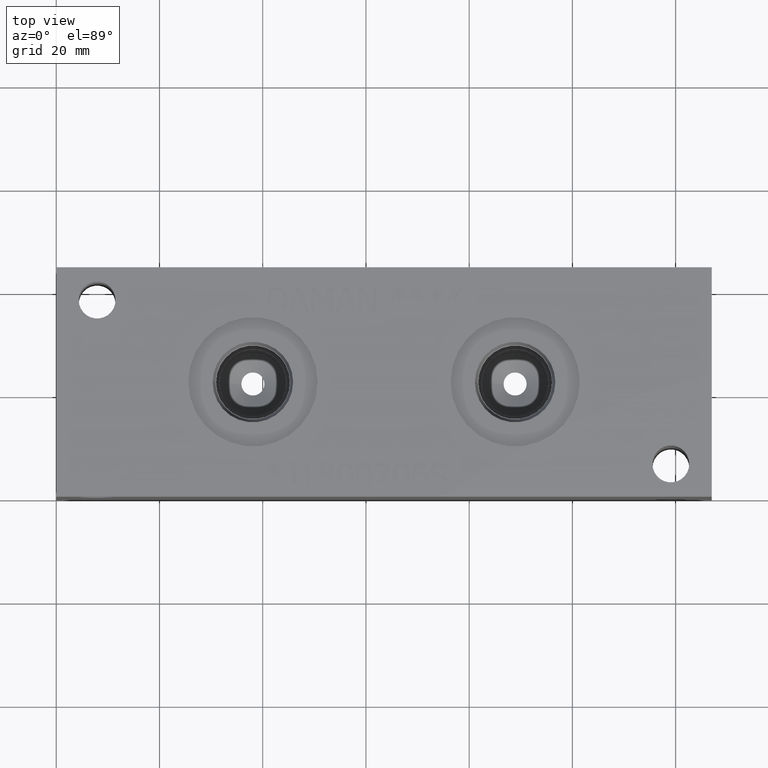
[diagram: clean part render]
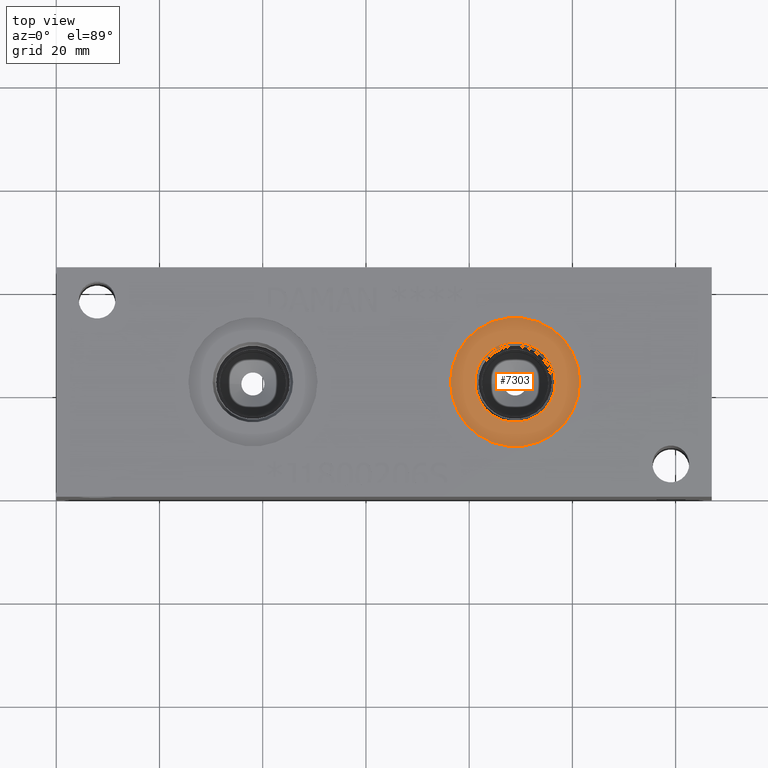
[diagram: same view with one face highlighted and labeled with its STEP entity id]
A machine part, top view. The second image highlights one B-rep face of the part: STEP entity #7303.
In plain terms, the highlighted planar face has unit normal (0, 0, -1).
Its self-contained STEP definition (entity closure, byte-faithful):
#123=CIRCLE('',#7632,12.5095);
#124=CIRCLE('',#7633,12.5095);
#125=CIRCLE('',#7635,7.79780000000001);
#126=CIRCLE('',#7636,7.79780000000001);
#193=FACE_BOUND('',#1304,.T.);
#893=FACE_OUTER_BOUND('',#1303,.T.);
#1303=EDGE_LOOP('',(#6283,#6284));
#1304=EDGE_LOOP('',(#6285,#6286));
#3352=VERTEX_POINT('',#12523);
#3353=VERTEX_POINT('',#12525);
#3354=VERTEX_POINT('',#12529);
#3355=VERTEX_POINT('',#12530);
#4339=EDGE_CURVE('',#3352,#3353,#123,.T.);
#4340=EDGE_CURVE('',#3353,#3352,#124,.T.);
#4341=EDGE_CURVE('',#3354,#3355,#125,.T.);
#4342=EDGE_CURVE('',#3355,#3354,#126,.T.);
#6283=ORIENTED_EDGE('',*,*,#4340,.F.);
#6284=ORIENTED_EDGE('',*,*,#4339,.F.);
#6285=ORIENTED_EDGE('',*,*,#4341,.T.);
#6286=ORIENTED_EDGE('',*,*,#4342,.T.);
#6643=PLANE('',#7634);
#7303=ADVANCED_FACE('',(#893,#193),#6643,.F.);
#7632=AXIS2_PLACEMENT_3D('',#12526,#8935,#8936);
#7633=AXIS2_PLACEMENT_3D('',#12527,#8937,#8938);
#7634=AXIS2_PLACEMENT_3D('',#12528,#8939,#8940);
#7635=AXIS2_PLACEMENT_3D('',#12531,#8941,#8942);
#7636=AXIS2_PLACEMENT_3D('',#12532,#8943,#8944);
#8935=DIRECTION('center_axis',(0.,0.,-1.));
#8936=DIRECTION('ref_axis',(1.,0.,0.));
#8937=DIRECTION('center_axis',(0.,0.,-1.));
#8938=DIRECTION('ref_axis',(1.,0.,0.));
#8939=DIRECTION('center_axis',(0.,0.,-1.));
#8940=DIRECTION('ref_axis',(-1.,0.,0.));
#8941=DIRECTION('center_axis',(0.,0.,-1.));
#8942=DIRECTION('ref_axis',(1.,0.,0.));
#8943=DIRECTION('center_axis',(0.,0.,-1.));
#8944=DIRECTION('ref_axis',(1.,0.,0.));
#12523=CARTESIAN_POINT('',(76.3905,22.225,43.6626));
#12525=CARTESIAN_POINT('',(101.4095,22.225,43.6626));
#12526=CARTESIAN_POINT('Origin',(88.9,22.225,43.6626));
#12527=CARTESIAN_POINT('Origin',(88.9,22.225,43.6626));
#12528=CARTESIAN_POINT('Origin',(96.6978,22.225,43.6626));
#12529=CARTESIAN_POINT('',(96.6978,22.225,43.6626));
#12530=CARTESIAN_POINT('',(81.1022,22.225,43.6626));
#12531=CARTESIAN_POINT('Origin',(88.9,22.225,43.6626));
#12532=CARTESIAN_POINT('Origin',(88.9,22.225,43.6626));